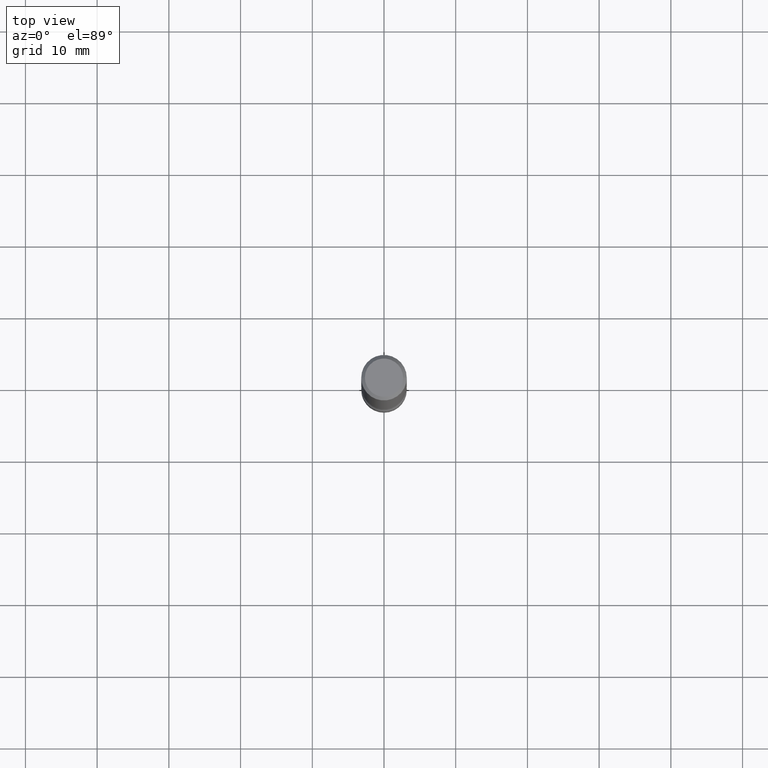
[diagram: clean part render]
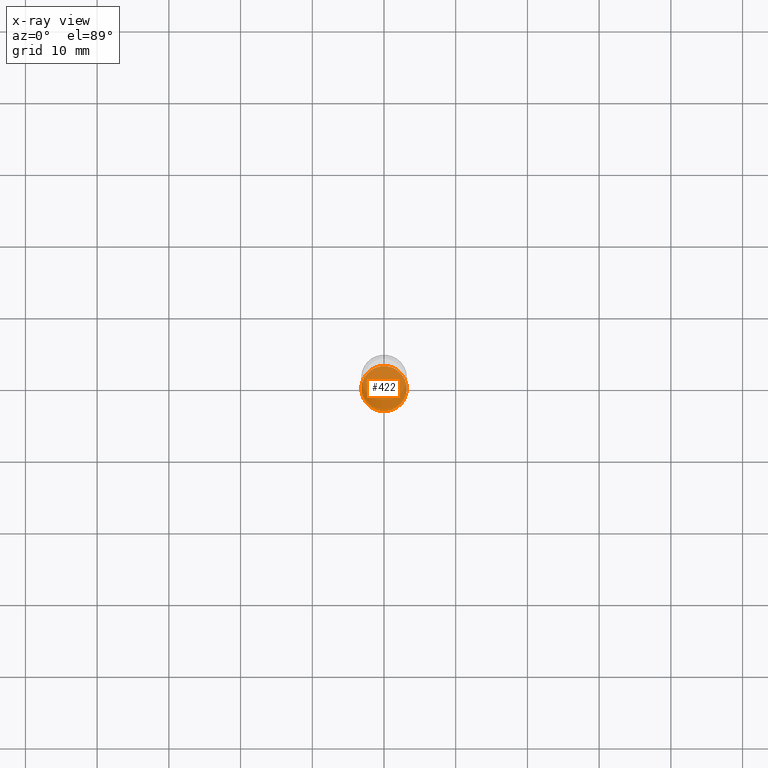
[diagram: x-ray — body ghosted, one internal face saturated and labeled with its STEP entity id]
A machine part, top view, then the same camera in x-ray: the body is ghosted and one INTERNAL B-rep face — a face not visible from any outside direction — is saturated and labeled: STEP entity #422.
In plain terms, the highlighted planar face has unit normal (0, -0, -1).
Its self-contained STEP definition (entity closure, byte-faithful):
#3 = ORIENTED_EDGE ( 'NONE', *, *, #491, .T. ) ;
#8 = CIRCLE ( 'NONE', #41, 0.1244999999999993195 ) ;
#30 = DIRECTION ( 'NONE',  ( 2.438088387897960049E-29, -3.491481338843145188E-15, -1.000000000000000000 ) ) ;
#41 = AXIS2_PLACEMENT_3D ( 'NONE', #292, #458, #117 ) ;
#117 = DIRECTION ( 'NONE',  ( -1.000000000000000000, 6.982962677686273810E-15, 0.000000000000000000 ) ) ;
#123 = AXIS2_PLACEMENT_3D ( 'NONE', #374, #30, #205 ) ;
#154 = PLANE ( 'NONE',  #123 ) ;
#155 = ORIENTED_EDGE ( 'NONE', *, *, #510, .T. ) ;
#189 = AXIS2_PLACEMENT_3D ( 'NONE', #242, #333, #499 ) ;
#192 = EDGE_LOOP ( 'NONE', ( #3, #155 ) ) ;
#205 = DIRECTION ( 'NONE',  ( -1.000000000000000000, 6.982962677686265922E-15, -4.876176775795935793E-29 ) ) ;
#228 = VERTEX_POINT ( 'NONE', #256 ) ;
#230 = CARTESIAN_POINT ( 'NONE',  ( 0.1244999999999993195, -1.309017642521702026E-14, -3.499999999999999112 ) ) ;
#242 = CARTESIAN_POINT ( 'NONE',  ( 8.559140821647976968E-29, -1.222018468595100619E-14, -3.499999999999999112 ) ) ;
#247 = FACE_OUTER_BOUND ( 'NONE', #192, .T. ) ;
#256 = CARTESIAN_POINT ( 'NONE',  ( -0.1244999999999993195, -1.133369882510410574E-14, -3.499999999999999112 ) ) ;
#292 = CARTESIAN_POINT ( 'NONE',  ( 8.559140821647976968E-29, -1.222018468595100619E-14, -3.499999999999999112 ) ) ;
#333 = DIRECTION ( 'NONE',  ( 2.445468806185136597E-29, -3.491481338843145583E-15, -1.000000000000000000 ) ) ;
#374 = CARTESIAN_POINT ( 'NONE',  ( 8.693788533720209927E-16, 0.1244999999999870932, -3.500000000000000000 ) ) ;
#404 = VERTEX_POINT ( 'NONE', #230 ) ;
#422 = ADVANCED_FACE ( 'NONE', ( #247 ), #154, .T. ) ;
#428 = CIRCLE ( 'NONE', #189, 0.1244999999999993195 ) ;
#458 = DIRECTION ( 'NONE',  ( 2.445468806185136597E-29, -3.491481338843145583E-15, -1.000000000000000000 ) ) ;
#491 = EDGE_CURVE ( 'NONE', #404, #228, #428, .T. ) ;
#499 = DIRECTION ( 'NONE',  ( -1.000000000000000000, 6.982962677686273810E-15, 0.000000000000000000 ) ) ;
#510 = EDGE_CURVE ( 'NONE', #228, #404, #8, .T. ) ;